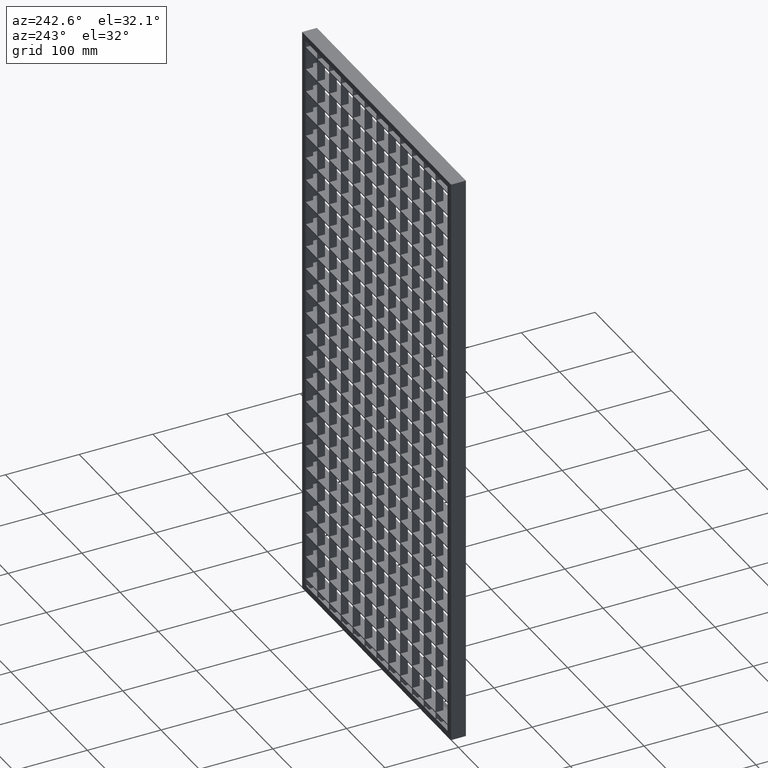
[diagram: clean part render]
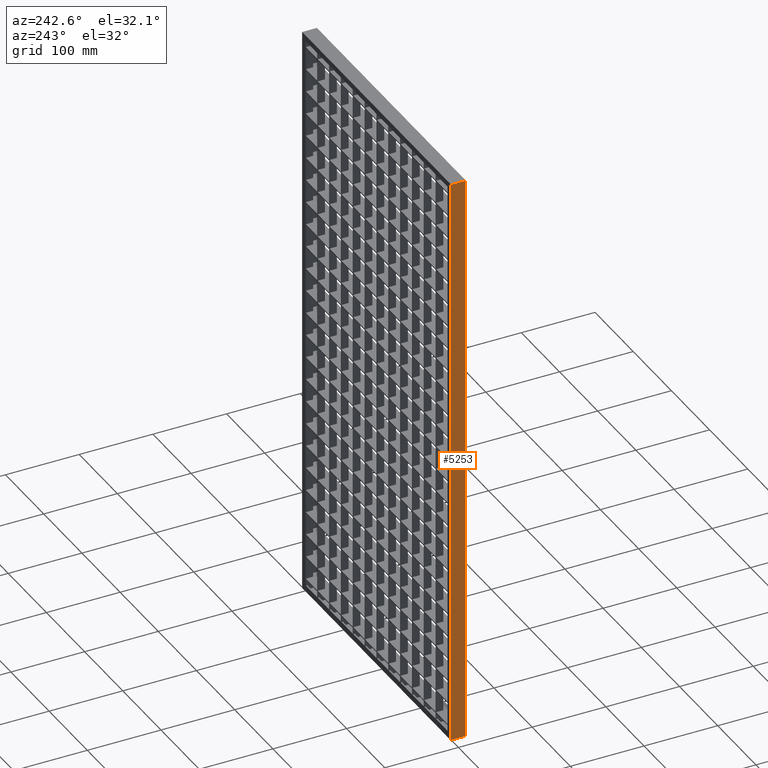
[diagram: same view with one face highlighted and labeled with its STEP entity id]
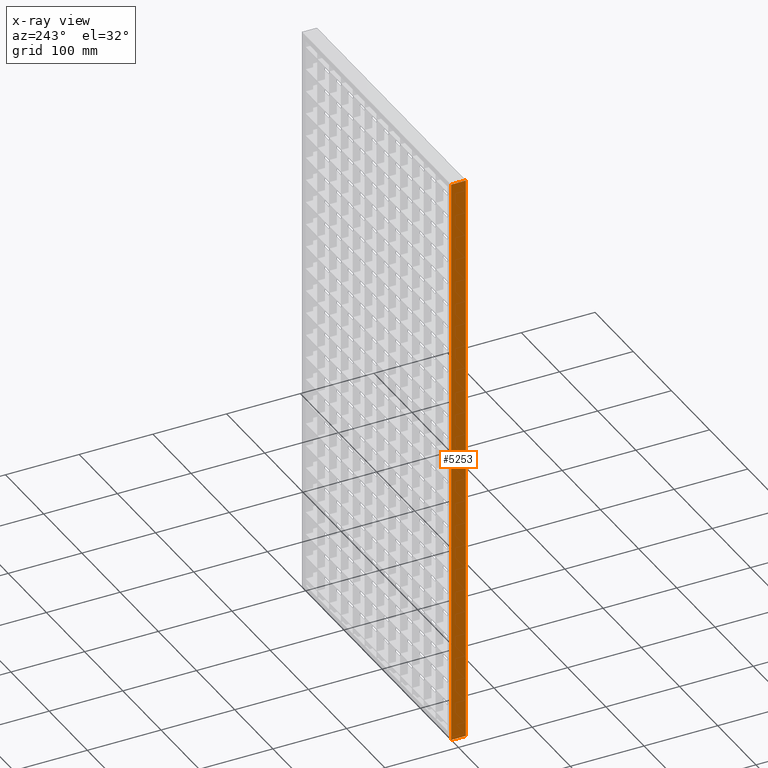
[diagram: x-ray of the same camera — body ghosted, the highlighted face saturated]
A machine part, auxiliary view. The second image highlights one B-rep face of the part: STEP entity #5253.
The next image is the same camera in x-ray: the body ghosted, the highlighted face saturated — about 0% of this face is hidden behind the body in this view.
In plain terms, the highlighted planar face has unit normal (-1, -0, 0).
Its self-contained STEP definition (entity closure, byte-faithful):
#1725 = CARTESIAN_POINT ( 'NONE',  ( 1.530808498934191500E-015, -10.00000000000000000, -1.110223024625156500E-013 ) ) ;
#1790 = VERTEX_POINT ( 'NONE', #39881 ) ;
#4589 = ORIENTED_EDGE ( 'NONE', *, *, #13488, .T. ) ;
#4779 = LINE ( 'NONE', #4917, #47050 ) ;
#4917 = CARTESIAN_POINT ( 'NONE',  ( 3.061616997868383000E-015, -10.00000000000000000, -833.0813184570761200 ) ) ;
#5129 = AXIS2_PLACEMENT_3D ( 'NONE', #10137, #17605, #17951 ) ;
#5253 = ADVANCED_FACE ( 'NONE', ( #6542 ), #41709, .T. ) ;
#5337 = CARTESIAN_POINT ( 'NONE',  ( -3.061616997868382300E-015, 10.00000000000000000, -833.0813184570761200 ) ) ;
#6241 = CARTESIAN_POINT ( 'NONE',  ( -5.551115123125797200E-014, 10.00000000000000200, 1.224646799147365200E-014 ) ) ;
#6406 = CARTESIAN_POINT ( 'NONE',  ( 1.020538999289461500E-015, -3.333333333333335700, 0.0000000000000000000 ) ) ;
#6542 = FACE_OUTER_BOUND ( 'NONE', #24613, .T. ) ;
#7227 = VECTOR ( 'NONE', #21882, 1000.000000000000000 ) ;
#7510 = ORIENTED_EDGE ( 'NONE', *, *, #37023, .T. ) ;
#9565 = CARTESIAN_POINT ( 'NONE',  ( -1.020538999289461100E-015, 3.333333333333333900, 0.0000000000000000000 ) ) ;
#10137 = CARTESIAN_POINT ( 'NONE',  ( -3.061616997868382300E-015, 10.00000000000000000, -833.0813184570761200 ) ) ;
#10148 = B_SPLINE_CURVE_WITH_KNOTS ( 'NONE', 3,
 ( #1725, #6406, #9565, #6241 ),
 .UNSPECIFIED., .F., .F.,
 ( 4, 4 ),
 ( 0.0000000000000000000, 1.000000000000000000 ),
 .UNSPECIFIED. ) ;
#10534 = EDGE_CURVE ( 'NONE', #43810, #46497, #4779, .T. ) ;
#11683 = VECTOR ( 'NONE', #12560, 1000.000000000000000 ) ;
#12560 = DIRECTION ( 'NONE',  ( 3.061616997868382200E-016, -1.000000000000000000, 3.061616997868382200E-016 ) ) ;
#13488 = EDGE_CURVE ( 'NONE', #46497, #1790, #10148, .T. ) ;
#15392 = LINE ( 'NONE', #29016, #11683 ) ;
#17605 = DIRECTION ( 'NONE',  ( -1.000000000000000000, -3.061616997868382200E-016, 0.0000000000000000000 ) ) ;
#17818 = LINE ( 'NONE', #5337, #7227 ) ;
#17951 = DIRECTION ( 'NONE',  ( 3.061616997868382200E-016, -1.000000000000000000, 0.0000000000000000000 ) ) ;
#19953 = ORIENTED_EDGE ( 'NONE', *, *, #10534, .T. ) ;
#21882 = DIRECTION ( 'NONE',  ( -0.0000000000000000000, -0.0000000000000000000, 1.000000000000000000 ) ) ;
#23185 = CARTESIAN_POINT ( 'NONE',  ( -3.061616997868381900E-015, 10.00000000000000000, -790.0000000000000000 ) ) ;
#24613 = EDGE_LOOP ( 'NONE', ( #19953, #4589, #42057, #7510 ) ) ;
#28712 = EDGE_CURVE ( 'NONE', #31348, #1790, #17818, .T. ) ;
#29016 = CARTESIAN_POINT ( 'NONE',  ( -3.061616997868386200E-015, 10.00000000000001400, -790.0000000000000000 ) ) ;
#31348 = VERTEX_POINT ( 'NONE', #23185 ) ;
#33198 = DIRECTION ( 'NONE',  ( -0.0000000000000000000, -0.0000000000000000000, 1.000000000000000000 ) ) ;
#37023 = EDGE_CURVE ( 'NONE', #31348, #43810, #15392, .T. ) ;
#39881 = CARTESIAN_POINT ( 'NONE',  ( -5.551115123125797200E-014, 10.00000000000000200, 1.224646799147365200E-014 ) ) ;
#41544 = CARTESIAN_POINT ( 'NONE',  ( 1.530808498934191500E-015, -10.00000000000000000, -1.110223024625156500E-013 ) ) ;
#41709 = PLANE ( 'NONE',  #5129 ) ;
#42057 = ORIENTED_EDGE ( 'NONE', *, *, #28712, .F. ) ;
#43810 = VERTEX_POINT ( 'NONE', #45016 ) ;
#45016 = CARTESIAN_POINT ( 'NONE',  ( 3.061616997868383000E-015, -10.00000000000000000, -790.0000000000000000 ) ) ;
#46497 = VERTEX_POINT ( 'NONE', #41544 ) ;
#47050 = VECTOR ( 'NONE', #33198, 1000.000000000000000 ) ;